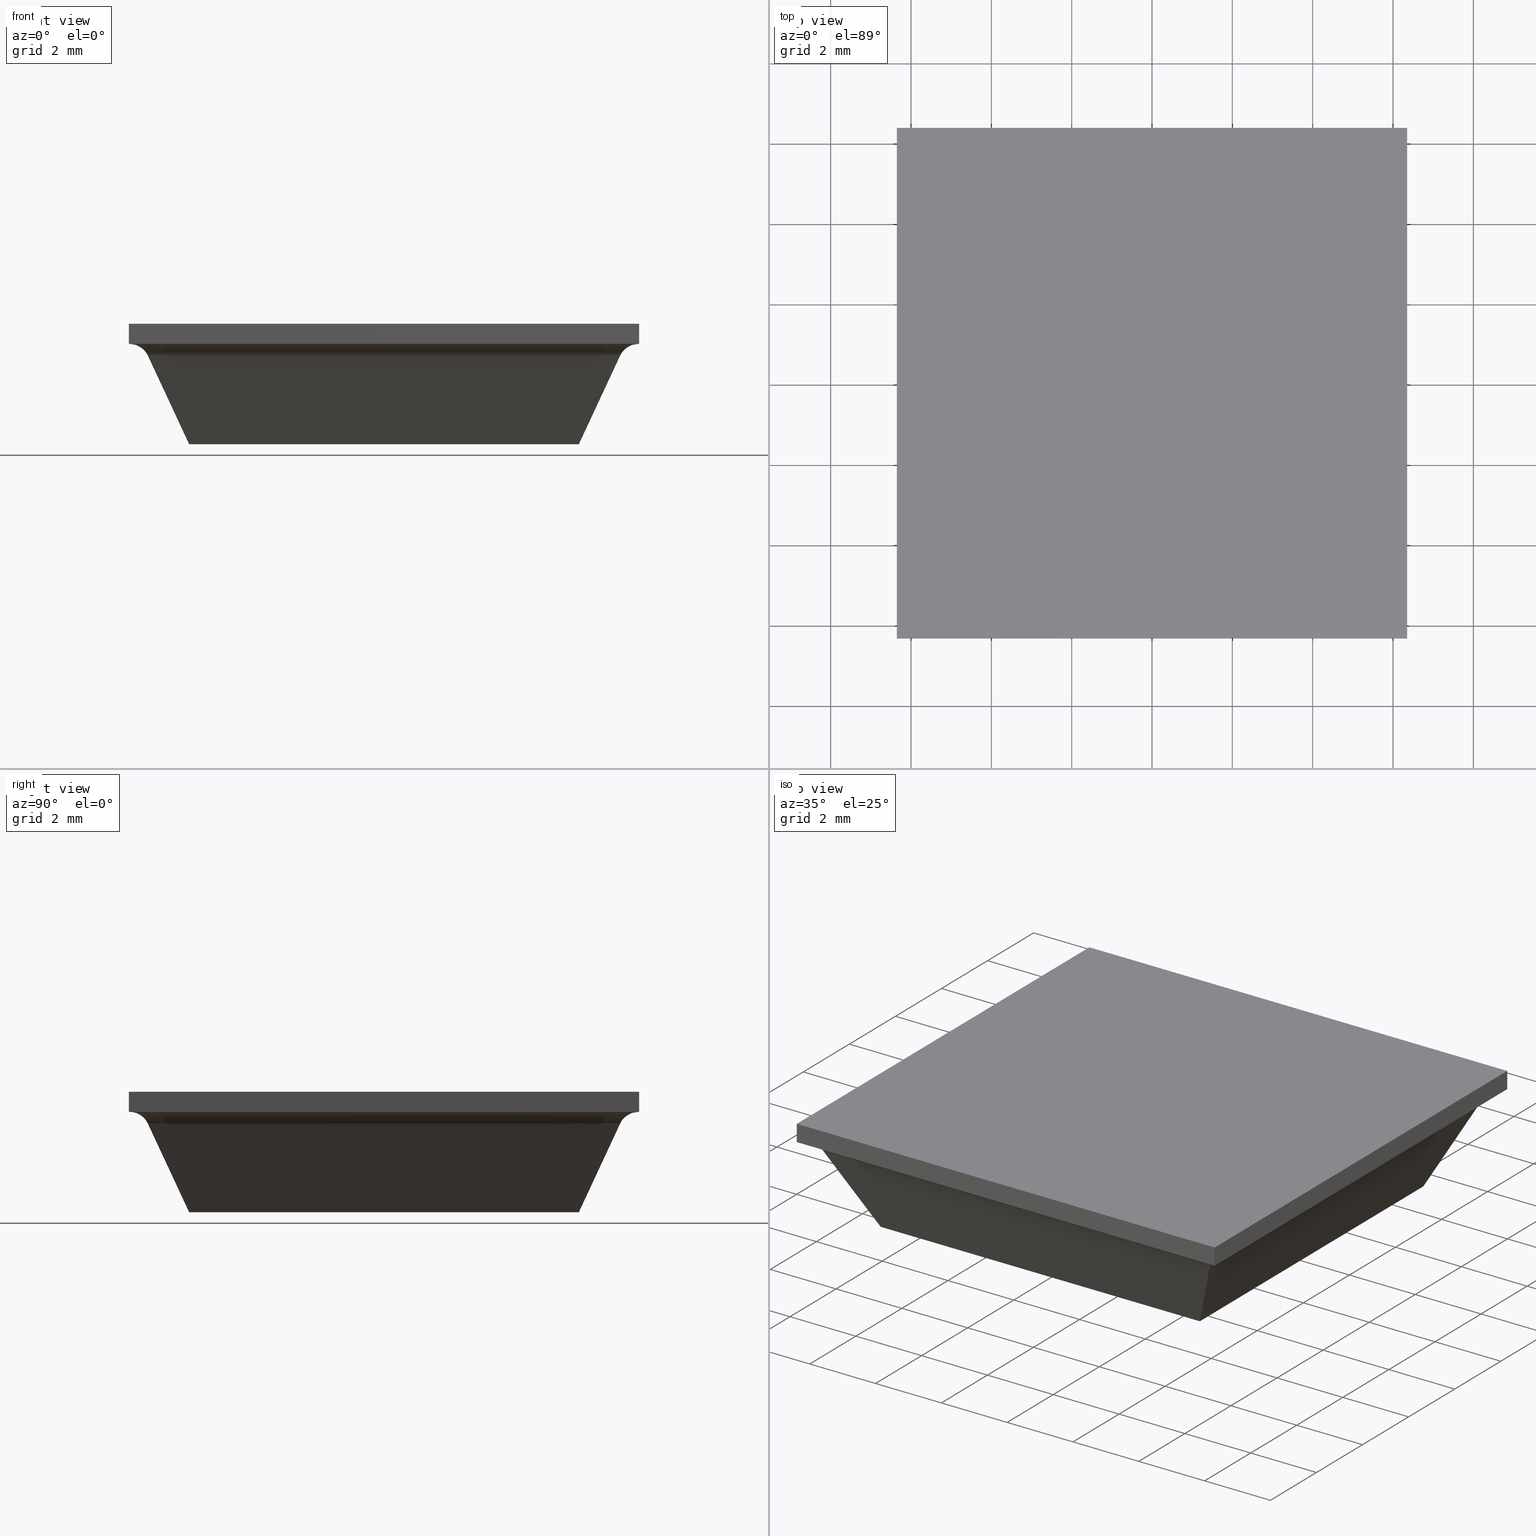
[diagram: canonical four-view strip — front | top / right | iso, engineering-drawing reading convention]
A machine part, canonical four-view strip (front | top / right | iso — engineering-drawing reading convention). The complete STEP part file that produces these views, byte-faithful:
ISO-10303-21;
HEADER;
/****************************************************************
 * Generated by software with PDE/Lib inside                    *
 * PDElib Version 4.4.1-0003, patched  Thursday August 19 11:58 *
 * International Technegroup Inc. (www.iti-oh.com)              *
 ****************************************************************/
FILE_DESCRIPTION((''),'2;1');
FILE_NAME('','2005-12-14T15:44:19',(''),(''),'','CADfix','');
FILE_SCHEMA(('AUTOMOTIVE_DESIGN'));
ENDSEC;
DATA;
#5=APPLICATION_CONTEXT('automotive design');
#6=APPLICATION_PROTOCOL_DEFINITION('Draft International Standard','automotive_design',1998,#5);
#7=PRODUCT_CONTEXT('None',#5,'mechanical');
#8=PRODUCT('rubber foot','','None',(#7));
#9=PRODUCT_RELATED_PRODUCT_CATEGORY('part','description',(#8));
#10=PRODUCT_DEFINITION_FORMATION('None','None',#8);
#11=PRODUCT_DEFINITION_CONTEXT('part definition',#5,'design');
#12=PRODUCT_DEFINITION('None','None',#10,#11);
#18=(NAMED_UNIT(*)PLANE_ANGLE_UNIT()SI_UNIT($,.RADIAN.));
#19=DIMENSIONAL_EXPONENTS(0.0,0.0,0.0,0.0,0.0,0.0,0.0);
#20=PLANE_ANGLE_MEASURE_WITH_UNIT(PLANE_ANGLE_MEASURE(0.017453292500000),#18);
#24=(CONVERSION_BASED_UNIT('DEGREE',#20)NAMED_UNIT(#19)PLANE_ANGLE_UNIT());
#28=(NAMED_UNIT(*)SI_UNIT($,.STERADIAN.)SOLID_ANGLE_UNIT());
#32=(LENGTH_UNIT()NAMED_UNIT(*)SI_UNIT(.MILLI.,.METRE.));
#34=UNCERTAINTY_MEASURE_WITH_UNIT(LENGTH_MEASURE(0.001000000000000),#32,'DISTANCE_ACCURACY_VALUE','');
#36=(GEOMETRIC_REPRESENTATION_CONTEXT(3)GLOBAL_UNCERTAINTY_ASSIGNED_CONTEXT((#34))GLOBAL_UNIT_ASSIGNED_CONTEXT((#24,#28,#32))REPRESENTATION_CONTEXT('None','None'));
#37=AXIS2_PLACEMENT_3D('',#38,#39,#40);
#38=CARTESIAN_POINT('',(0.0,0.0,0.0));
#39=DIRECTION('',(0.0,0.0,1.0));
#40=DIRECTION('',(1.0,0.0,0.0));
#41=ADVANCED_BREP_SHAPE_REPRESENTATION('',(#37,#467),#36);
#42=PRODUCT_DEFINITION_SHAPE('','',#12);
#43=SHAPE_DEFINITION_REPRESENTATION(#42,#41);
#44=CARTESIAN_POINT('',(-6.347392428698098,6.651019152271369,2.499828662487778));
#45=CARTESIAN_POINT('',(-6.347392428698098,-6.658937032214548,2.499828662487778));
#46=CARTESIAN_POINT('',(-6.000215764091201,6.651019152271368,2.508919803397826));
#47=CARTESIAN_POINT('',(-6.000215764091201,-6.658937032214548,2.508919803397826));
#48=CARTESIAN_POINT('',(-5.870493255542651,6.651019152271369,2.186760904612636));
#49=CARTESIAN_POINT('',(-5.870493255542651,-6.658937032214548,2.186760904612636));
#57=(BOUNDED_SURFACE()B_SPLINE_SURFACE(1,2,((#44,#46,#48),(#45,#47,#49)),.UNSPECIFIED.,.F.,.F.,.U.)B_SPLINE_SURFACE_WITH_KNOTS((2,2),(3,3),(0.0,13.309956184485920),(0.0,0.993420241738949),.UNSPECIFIED.)GEOMETRIC_REPRESENTATION_ITEM()RATIONAL_B_SPLINE_SURFACE(((1.0,0.820341980119575,0.997635787319055),(1.0,0.820341980119575,0.997635787319055)))REPRESENTATION_ITEM('')SURFACE());
#58=CARTESIAN_POINT('',(-5.881150035810770,-5.881150035810969,2.211309076796455));
#59=VERTEX_POINT('',#58);
#60=CARTESIAN_POINT('',(-6.334303954544160,-6.334303954544160,2.500000000000000));
#61=VERTEX_POINT('',#60);
#62=CARTESIAN_POINT('',(-5.881150035810770,-5.881150035810969,2.211309076796455));
#63=CARTESIAN_POINT('',(-6.015768782200882,-6.015768782200882,2.500000000000001));
#64=CARTESIAN_POINT('',(-6.334303954544160,-6.334303954544160,2.500000000000000));
#72=(BOUNDED_CURVE()B_SPLINE_CURVE(2,(#62,#63,#64),.UNSPECIFIED.,.F.,.U.)CURVE()GEOMETRIC_REPRESENTATION_ITEM()QUASI_UNIFORM_CURVE()RATIONAL_B_SPLINE_CURVE((1.0,0.843391413755473,1.0))REPRESENTATION_ITEM(''));
#73=EDGE_CURVE('',#59,#61,#72,.T.);
#74=ORIENTED_EDGE('',*,*,#73,.T.);
#75=CARTESIAN_POINT('',(-6.334303954544160,6.334303954544160,2.500000000000000));
#76=VERTEX_POINT('',#75);
#77=CARTESIAN_POINT('',(-6.334303954544160,6.334303954544160,2.500000000000000));
#78=CARTESIAN_POINT('',(-6.334303954544160,-6.334303954544160,2.500000000000000));
#79=QUASI_UNIFORM_CURVE('',1,(#77,#78),.UNSPECIFIED.,.F.,.U.);
#80=EDGE_CURVE('',#76,#61,#79,.T.);
#81=ORIENTED_EDGE('',*,*,#80,.F.);
#82=CARTESIAN_POINT('',(-5.881150035810859,5.881150035810720,2.211309076796675));
#83=VERTEX_POINT('',#82);
#84=CARTESIAN_POINT('',(-6.334303954544160,6.334303954544160,2.500000000000000));
#85=CARTESIAN_POINT('',(-6.015768782200919,6.015768782200919,2.500000000000001));
#86=CARTESIAN_POINT('',(-5.881150035810859,5.881150035810720,2.211309076796675));
#94=(BOUNDED_CURVE()B_SPLINE_CURVE(2,(#84,#85,#86),.UNSPECIFIED.,.F.,.U.)CURVE()GEOMETRIC_REPRESENTATION_ITEM()QUASI_UNIFORM_CURVE()RATIONAL_B_SPLINE_CURVE((1.0,0.843391413755501,1.0))REPRESENTATION_ITEM(''));
#95=EDGE_CURVE('',#76,#83,#94,.T.);
#96=ORIENTED_EDGE('',*,*,#95,.T.);
#97=CARTESIAN_POINT('',(-5.881150035810770,-5.881150035810969,2.211309076796455));
#98=CARTESIAN_POINT('',(-5.881150035810859,5.881150035810720,2.211309076796675));
#99=QUASI_UNIFORM_CURVE('',1,(#97,#98),.UNSPECIFIED.,.F.,.U.);
#100=EDGE_CURVE('',#59,#83,#99,.T.);
#101=ORIENTED_EDGE('',*,*,#100,.F.);
#102=EDGE_LOOP('',(#74,#81,#96,#101));
#103=FACE_OUTER_BOUND('',#102,.T.);
#104=ADVANCED_FACE('',(#103),#57,.F.);
#105=CARTESIAN_POINT('',(6.651019152271369,6.347392428698098,2.499828662487778));
#106=CARTESIAN_POINT('',(-6.658937032214548,6.347392428698098,2.499828662487778));
#107=CARTESIAN_POINT('',(6.651019152271368,6.000215764091201,2.508919803397826));
#108=CARTESIAN_POINT('',(-6.658937032214548,6.000215764091201,2.508919803397826));
#109=CARTESIAN_POINT('',(6.651019152271369,5.870493255542651,2.186760904612636));
#110=CARTESIAN_POINT('',(-6.658937032214548,5.870493255542651,2.186760904612636));
#118=(BOUNDED_SURFACE()B_SPLINE_SURFACE(1,2,((#105,#107,#109),(#106,#108,#110)),.UNSPECIFIED.,.F.,.F.,.U.)B_SPLINE_SURFACE_WITH_KNOTS((2,2),(3,3),(0.0,13.309956184485920),(0.0,0.993420241738949),.UNSPECIFIED.)GEOMETRIC_REPRESENTATION_ITEM()RATIONAL_B_SPLINE_SURFACE(((1.0,0.820341980119575,0.997635787319055),(1.0,0.820341980119575,0.997635787319055)))REPRESENTATION_ITEM('')SURFACE());
#119=CARTESIAN_POINT('',(6.334303954544160,6.334303954544160,2.500000000000000));
#120=VERTEX_POINT('',#119);
#121=CARTESIAN_POINT('',(5.881150035810720,5.881150035810859,2.211309076796675));
#122=VERTEX_POINT('',#121);
#123=CARTESIAN_POINT('',(6.334303954544160,6.334303954544160,2.500000000000000));
#124=CARTESIAN_POINT('',(6.015768782200919,6.015768782200919,2.500000000000001));
#125=CARTESIAN_POINT('',(5.881150035810720,5.881150035810859,2.211309076796675));
#133=(BOUNDED_CURVE()B_SPLINE_CURVE(2,(#123,#124,#125),.UNSPECIFIED.,.F.,.U.)CURVE()GEOMETRIC_REPRESENTATION_ITEM()QUASI_UNIFORM_CURVE()RATIONAL_B_SPLINE_CURVE((1.0,0.843391413755501,1.0))REPRESENTATION_ITEM(''));
#134=EDGE_CURVE('',#120,#122,#133,.T.);
#135=ORIENTED_EDGE('',*,*,#134,.T.);
#136=CARTESIAN_POINT('',(-5.881150035810859,5.881150035810720,2.211309076796675));
#137=CARTESIAN_POINT('',(5.881150035810720,5.881150035810859,2.211309076796675));
#138=QUASI_UNIFORM_CURVE('',1,(#136,#137),.UNSPECIFIED.,.F.,.U.);
#139=EDGE_CURVE('',#83,#122,#138,.T.);
#140=ORIENTED_EDGE('',*,*,#139,.F.);
#141=ORIENTED_EDGE('',*,*,#95,.F.);
#142=CARTESIAN_POINT('',(6.334303954544160,6.334303954544160,2.500000000000000));
#143=CARTESIAN_POINT('',(-6.334303954544160,6.334303954544160,2.500000000000000));
#144=QUASI_UNIFORM_CURVE('',1,(#142,#143),.UNSPECIFIED.,.F.,.U.);
#145=EDGE_CURVE('',#120,#76,#144,.T.);
#146=ORIENTED_EDGE('',*,*,#145,.F.);
#147=EDGE_LOOP('',(#135,#140,#141,#146));
#148=FACE_OUTER_BOUND('',#147,.T.);
#149=ADVANCED_FACE('',(#148),#118,.F.);
#150=CARTESIAN_POINT('',(-6.651019152271369,-6.347392428698098,2.499828662487778));
#151=CARTESIAN_POINT('',(6.658937032214548,-6.347392428698098,2.499828662487778));
#152=CARTESIAN_POINT('',(-6.651019152271368,-6.000215764091201,2.508919803397826));
#153=CARTESIAN_POINT('',(6.658937032214548,-6.000215764091201,2.508919803397826));
#154=CARTESIAN_POINT('',(-6.651019152271369,-5.870493255542651,2.186760904612636));
#155=CARTESIAN_POINT('',(6.658937032214548,-5.870493255542651,2.186760904612636));
#163=(BOUNDED_SURFACE()B_SPLINE_SURFACE(1,2,((#150,#152,#154),(#151,#153,#155)),.UNSPECIFIED.,.F.,.F.,.U.)B_SPLINE_SURFACE_WITH_KNOTS((2,2),(3,3),(0.0,13.309956184485920),(0.0,0.993420241738949),.UNSPECIFIED.)GEOMETRIC_REPRESENTATION_ITEM()RATIONAL_B_SPLINE_SURFACE(((1.0,0.820341980119575,0.997635787319055),(1.0,0.820341980119575,0.997635787319055)))REPRESENTATION_ITEM('')SURFACE());
#164=CARTESIAN_POINT('',(5.881150035810859,-5.881150035810720,2.211309076796675));
#165=VERTEX_POINT('',#164);
#166=CARTESIAN_POINT('',(6.334303954544160,-6.334303954544160,2.500000000000000));
#167=VERTEX_POINT('',#166);
#168=CARTESIAN_POINT('',(5.881150035810859,-5.881150035810720,2.211309076796675));
#169=CARTESIAN_POINT('',(6.015768782200919,-6.015768782200919,2.500000000000001));
#170=CARTESIAN_POINT('',(6.334303954544160,-6.334303954544160,2.500000000000000));
#178=(BOUNDED_CURVE()B_SPLINE_CURVE(2,(#168,#169,#170),.UNSPECIFIED.,.F.,.U.)CURVE()GEOMETRIC_REPRESENTATION_ITEM()QUASI_UNIFORM_CURVE()RATIONAL_B_SPLINE_CURVE((1.0,0.843391413755501,1.0))REPRESENTATION_ITEM(''));
#179=EDGE_CURVE('',#165,#167,#178,.T.);
#180=ORIENTED_EDGE('',*,*,#179,.T.);
#181=CARTESIAN_POINT('',(-6.334303954544160,-6.334303954544160,2.500000000000000));
#182=CARTESIAN_POINT('',(6.334303954544160,-6.334303954544160,2.500000000000000));
#183=QUASI_UNIFORM_CURVE('',1,(#181,#182),.UNSPECIFIED.,.F.,.U.);
#184=EDGE_CURVE('',#61,#167,#183,.T.);
#185=ORIENTED_EDGE('',*,*,#184,.F.);
#186=ORIENTED_EDGE('',*,*,#73,.F.);
#187=CARTESIAN_POINT('',(5.881150035810859,-5.881150035810720,2.211309076796675));
#188=CARTESIAN_POINT('',(-5.881150035810770,-5.881150035810969,2.211309076796455));
#189=QUASI_UNIFORM_CURVE('',1,(#187,#188),.UNSPECIFIED.,.F.,.U.);
#190=EDGE_CURVE('',#165,#59,#189,.T.);
#191=ORIENTED_EDGE('',*,*,#190,.F.);
#192=EDGE_LOOP('',(#180,#185,#186,#191));
#193=FACE_OUTER_BOUND('',#192,.T.);
#194=ADVANCED_FACE('',(#193),#163,.F.);
#195=CARTESIAN_POINT('',(6.347392428698098,-6.651019152271369,2.499828662487778));
#196=CARTESIAN_POINT('',(6.347392428698098,6.658937032214548,2.499828662487778));
#197=CARTESIAN_POINT('',(6.000215764091201,-6.651019152271368,2.508919803397826));
#198=CARTESIAN_POINT('',(6.000215764091201,6.658937032214548,2.508919803397826));
#199=CARTESIAN_POINT('',(5.870493255542651,-6.651019152271369,2.186760904612636));
#200=CARTESIAN_POINT('',(5.870493255542651,6.658937032214548,2.186760904612636));
#208=(BOUNDED_SURFACE()B_SPLINE_SURFACE(1,2,((#195,#197,#199),(#196,#198,#200)),.UNSPECIFIED.,.F.,.F.,.U.)B_SPLINE_SURFACE_WITH_KNOTS((2,2),(3,3),(0.0,13.309956184485920),(0.0,0.993420241738949),.UNSPECIFIED.)GEOMETRIC_REPRESENTATION_ITEM()RATIONAL_B_SPLINE_SURFACE(((1.0,0.820341980119575,0.997635787319055),(1.0,0.820341980119575,0.997635787319055)))REPRESENTATION_ITEM('')SURFACE());
#209=ORIENTED_EDGE('',*,*,#134,.F.);
#210=CARTESIAN_POINT('',(6.334303954544160,-6.334303954544160,2.500000000000000));
#211=CARTESIAN_POINT('',(6.334303954544160,6.334303954544160,2.500000000000000));
#212=QUASI_UNIFORM_CURVE('',1,(#210,#211),.UNSPECIFIED.,.F.,.U.);
#213=EDGE_CURVE('',#167,#120,#212,.T.);
#214=ORIENTED_EDGE('',*,*,#213,.F.);
#215=ORIENTED_EDGE('',*,*,#179,.F.);
#216=CARTESIAN_POINT('',(5.881150035810720,5.881150035810859,2.211309076796675));
#217=CARTESIAN_POINT('',(5.881150035810859,-5.881150035810720,2.211309076796675));
#218=QUASI_UNIFORM_CURVE('',1,(#216,#217),.UNSPECIFIED.,.F.,.U.);
#219=EDGE_CURVE('',#122,#165,#218,.T.);
#220=ORIENTED_EDGE('',*,*,#219,.F.);
#221=EDGE_LOOP('',(#209,#214,#215,#220));
#222=FACE_OUTER_BOUND('',#221,.T.);
#223=ADVANCED_FACE('',(#222),#208,.F.);
#224=CARTESIAN_POINT('',(-6.468677122422764,-4.798494034666428,-0.110454933516769));
#225=CARTESIAN_POINT('',(-6.468677122422764,-5.932656084117212,2.321764188249182));
#226=CARTESIAN_POINT('',(6.468677227586010,-4.798494034666428,-0.110454933516769));
#227=CARTESIAN_POINT('',(6.468677227586010,-5.932656084117212,2.321764188249182));
#228=B_SPLINE_SURFACE_WITH_KNOTS('',1,1,((#224,#226),(#225,#227)),.UNSPECIFIED.,.F.,.F.,.U.,(2,2),(2,2),(0.0,2.683656723707102),(0.0,12.937354350008780),.UNSPECIFIED.);
#229=CARTESIAN_POINT('',(4.850000000000001,-4.850000000000001,0.0));
#230=VERTEX_POINT('',#229);
#231=CARTESIAN_POINT('',(5.881150035810859,-5.881150035810720,2.211309076796675));
#232=CARTESIAN_POINT('',(4.850000000000001,-4.850000000000001,0.0));
#233=QUASI_UNIFORM_CURVE('',1,(#231,#232),.UNSPECIFIED.,.F.,.U.);
#234=EDGE_CURVE('',#165,#230,#233,.T.);
#235=ORIENTED_EDGE('',*,*,#234,.F.);
#236=ORIENTED_EDGE('',*,*,#190,.T.);
#237=CARTESIAN_POINT('',(-4.850000000000001,-4.850000000000001,0.0));
#238=VERTEX_POINT('',#237);
#239=CARTESIAN_POINT('',(-4.850000000000001,-4.850000000000001,0.0));
#240=CARTESIAN_POINT('',(-5.881150035810770,-5.881150035810969,2.211309076796455));
#241=QUASI_UNIFORM_CURVE('',1,(#239,#240),.UNSPECIFIED.,.F.,.U.);
#242=EDGE_CURVE('',#238,#59,#241,.T.);
#243=ORIENTED_EDGE('',*,*,#242,.F.);
#244=CARTESIAN_POINT('',(4.850000000000001,-4.850000000000001,0.0));
#245=CARTESIAN_POINT('',(-4.850000000000001,-4.850000000000001,0.0));
#246=QUASI_UNIFORM_CURVE('',1,(#244,#245),.UNSPECIFIED.,.F.,.U.);
#247=EDGE_CURVE('',#230,#238,#246,.T.);
#248=ORIENTED_EDGE('',*,*,#247,.F.);
#249=EDGE_LOOP('',(#235,#236,#243,#248));
#250=FACE_OUTER_BOUND('',#249,.T.);
#251=ADVANCED_FACE('',(#250),#228,.F.);
#252=CARTESIAN_POINT('',(4.798494034666426,-6.468677122422712,-0.110454933516772));
#253=CARTESIAN_POINT('',(5.932656084117236,-6.468677122422712,2.321764188249238));
#254=CARTESIAN_POINT('',(4.798494034666426,6.468677227586009,-0.110454933516772));
#255=CARTESIAN_POINT('',(5.932656084117236,6.468677227586009,2.321764188249238));
#256=B_SPLINE_SURFACE_WITH_KNOTS('',1,1,((#252,#254),(#253,#255)),.UNSPECIFIED.,.F.,.F.,.U.,(2,2),(2,2),(0.0,2.683656723707167),(0.0,12.937354350008720),.UNSPECIFIED.);
#257=CARTESIAN_POINT('',(4.850000000000001,4.850000000000001,0.0));
#258=VERTEX_POINT('',#257);
#259=CARTESIAN_POINT('',(5.881150035810720,5.881150035810859,2.211309076796675));
#260=CARTESIAN_POINT('',(4.850000000000001,4.850000000000001,0.0));
#261=QUASI_UNIFORM_CURVE('',1,(#259,#260),.UNSPECIFIED.,.F.,.U.);
#262=EDGE_CURVE('',#122,#258,#261,.T.);
#263=ORIENTED_EDGE('',*,*,#262,.F.);
#264=ORIENTED_EDGE('',*,*,#219,.T.);
#265=ORIENTED_EDGE('',*,*,#234,.T.);
#266=CARTESIAN_POINT('',(4.850000000000001,4.850000000000001,0.0));
#267=CARTESIAN_POINT('',(4.850000000000001,-4.850000000000001,0.0));
#268=QUASI_UNIFORM_CURVE('',1,(#266,#267),.UNSPECIFIED.,.F.,.U.);
#269=EDGE_CURVE('',#258,#230,#268,.T.);
#270=ORIENTED_EDGE('',*,*,#269,.F.);
#271=EDGE_LOOP('',(#263,#264,#265,#270));
#272=FACE_OUTER_BOUND('',#271,.T.);
#273=ADVANCED_FACE('',(#272),#256,.F.);
#274=CARTESIAN_POINT('',(-6.468677122422852,5.932656065218338,2.321764147720407));
#275=CARTESIAN_POINT('',(-6.468677122422852,4.798494025907725,-0.110454952299872));
#276=CARTESIAN_POINT('',(6.468677227585870,5.932656065218338,2.321764147720407));
#277=CARTESIAN_POINT('',(6.468677227585870,4.798494025907725,-0.110454952299872));
#278=B_SPLINE_SURFACE_WITH_KNOTS('',1,1,((#274,#276),(#275,#277)),.UNSPECIFIED.,.F.,.F.,.U.,(2,2),(2,2),(0.0,2.683656699713410),(0.0,12.937354350008720),.UNSPECIFIED.);
#279=CARTESIAN_POINT('',(-4.850000000000001,4.850000000000001,0.0));
#280=VERTEX_POINT('',#279);
#281=CARTESIAN_POINT('',(-5.881150035810859,5.881150035810720,2.211309076796675));
#282=CARTESIAN_POINT('',(-4.850000000000001,4.850000000000001,0.0));
#283=QUASI_UNIFORM_CURVE('',1,(#281,#282),.UNSPECIFIED.,.F.,.U.);
#284=EDGE_CURVE('',#83,#280,#283,.T.);
#285=ORIENTED_EDGE('',*,*,#284,.F.);
#286=ORIENTED_EDGE('',*,*,#139,.T.);
#287=ORIENTED_EDGE('',*,*,#262,.T.);
#288=CARTESIAN_POINT('',(-4.850000000000001,4.850000000000001,0.0));
#289=CARTESIAN_POINT('',(4.850000000000001,4.850000000000001,0.0));
#290=QUASI_UNIFORM_CURVE('',1,(#288,#289),.UNSPECIFIED.,.F.,.U.);
#291=EDGE_CURVE('',#280,#258,#290,.T.);
#292=ORIENTED_EDGE('',*,*,#291,.F.);
#293=EDGE_LOOP('',(#285,#286,#287,#292));
#294=FACE_OUTER_BOUND('',#293,.T.);
#295=ADVANCED_FACE('',(#294),#278,.F.);
#296=CARTESIAN_POINT('',(-5.932656065218338,-6.468677122422966,2.321764147720407));
#297=CARTESIAN_POINT('',(-4.798494025907725,-6.468677122422966,-0.110454952299872));
#298=CARTESIAN_POINT('',(-5.932656065218338,6.468677227585874,2.321764147720407));
#299=CARTESIAN_POINT('',(-4.798494025907725,6.468677227585874,-0.110454952299872));
#300=B_SPLINE_SURFACE_WITH_KNOTS('',1,1,((#296,#298),(#297,#299)),.UNSPECIFIED.,.F.,.F.,.U.,(2,2),(2,2),(0.0,2.683656699713410),(0.0,12.937354350008841),.UNSPECIFIED.);
#301=ORIENTED_EDGE('',*,*,#242,.T.);
#302=ORIENTED_EDGE('',*,*,#100,.T.);
#303=ORIENTED_EDGE('',*,*,#284,.T.);
#304=CARTESIAN_POINT('',(-4.850000000000001,-4.850000000000001,0.0));
#305=CARTESIAN_POINT('',(-4.850000000000001,4.850000000000001,0.0));
#306=QUASI_UNIFORM_CURVE('',1,(#304,#305),.UNSPECIFIED.,.F.,.U.);
#307=EDGE_CURVE('',#238,#280,#306,.T.);
#308=ORIENTED_EDGE('',*,*,#307,.F.);
#309=EDGE_LOOP('',(#301,#302,#303,#308));
#310=FACE_OUTER_BOUND('',#309,.T.);
#311=ADVANCED_FACE('',(#310),#300,.F.);
#312=CARTESIAN_POINT('',(-6.984364856166421,-6.984364856166422,2.500000000000000));
#313=CARTESIAN_POINT('',(6.984365310353813,-6.984364856166422,2.500000000000000));
#314=CARTESIAN_POINT('',(-6.984364856166421,6.984365310353814,2.500000000000000));
#315=CARTESIAN_POINT('',(6.984365310353814,6.984365310353814,2.500000000000000));
#316=B_SPLINE_SURFACE_WITH_KNOTS('',1,1,((#312,#314),(#313,#315)),.UNSPECIFIED.,.F.,.F.,.U.,(2,2),(2,2),(0.0,13.968730166520240),(0.0,13.968730166520240),.UNSPECIFIED.);
#317=CARTESIAN_POINT('',(6.350000000000000,6.350000000000000,2.500000000000000));
#318=VERTEX_POINT('',#317);
#319=CARTESIAN_POINT('',(6.350000000000000,-6.350000000000000,2.500000000000000));
#320=VERTEX_POINT('',#319);
#321=CARTESIAN_POINT('',(6.350000000000000,6.350000000000000,2.500000000000000));
#322=CARTESIAN_POINT('',(6.350000000000000,-6.350000000000000,2.500000000000000));
#323=QUASI_UNIFORM_CURVE('',1,(#321,#322),.UNSPECIFIED.,.F.,.U.);
#324=EDGE_CURVE('',#318,#320,#323,.T.);
#325=ORIENTED_EDGE('',*,*,#324,.T.);
#326=CARTESIAN_POINT('',(-6.350000000000000,-6.350000000000000,2.500000000000000));
#327=VERTEX_POINT('',#326);
#328=CARTESIAN_POINT('',(-6.350000000000000,-6.350000000000000,2.500000000000000));
#329=CARTESIAN_POINT('',(6.350000000000000,-6.350000000000000,2.500000000000000));
#330=QUASI_UNIFORM_CURVE('',1,(#328,#329),.UNSPECIFIED.,.F.,.U.);
#331=EDGE_CURVE('',#327,#320,#330,.T.);
#332=ORIENTED_EDGE('',*,*,#331,.F.);
#333=CARTESIAN_POINT('',(-6.350000000000000,6.350000000000000,2.500000000000000));
#334=VERTEX_POINT('',#333);
#335=CARTESIAN_POINT('',(-6.350000000000000,-6.350000000000000,2.500000000000000));
#336=CARTESIAN_POINT('',(-6.350000000000000,6.350000000000000,2.500000000000000));
#337=QUASI_UNIFORM_CURVE('',1,(#335,#336),.UNSPECIFIED.,.F.,.U.);
#338=EDGE_CURVE('',#327,#334,#337,.T.);
#339=ORIENTED_EDGE('',*,*,#338,.T.);
#340=CARTESIAN_POINT('',(-6.350000000000000,6.350000000000000,2.500000000000000));
#341=CARTESIAN_POINT('',(6.350000000000000,6.350000000000000,2.500000000000000));
#342=QUASI_UNIFORM_CURVE('',1,(#340,#341),.UNSPECIFIED.,.F.,.U.);
#343=EDGE_CURVE('',#334,#318,#342,.T.);
#344=ORIENTED_EDGE('',*,*,#343,.T.);
#345=EDGE_LOOP('',(#325,#332,#339,#344));
#346=FACE_OUTER_BOUND('',#345,.T.);
#347=ORIENTED_EDGE('',*,*,#145,.T.);
#348=ORIENTED_EDGE('',*,*,#80,.T.);
#349=ORIENTED_EDGE('',*,*,#184,.T.);
#350=ORIENTED_EDGE('',*,*,#213,.T.);
#351=EDGE_LOOP('',(#347,#348,#349,#350));
#352=FACE_BOUND('',#351,.T.);
#353=ADVANCED_FACE('',(#346,#352),#316,.F.);
#354=CARTESIAN_POINT('',(-5.334514890142859,-5.334514890142859,0.0));
#355=CARTESIAN_POINT('',(5.334515237041892,-5.334514890142859,0.0));
#356=CARTESIAN_POINT('',(-5.334514890142858,5.334515237041892,0.0));
#357=CARTESIAN_POINT('',(5.334515237041892,5.334515237041892,0.0));
#358=B_SPLINE_SURFACE_WITH_KNOTS('',1,1,((#354,#356),(#355,#357)),.UNSPECIFIED.,.F.,.F.,.U.,(2,2),(2,2),(0.0,10.669030127184749),(0.0,10.669030127184749),.UNSPECIFIED.);
#359=ORIENTED_EDGE('',*,*,#247,.T.);
#360=ORIENTED_EDGE('',*,*,#307,.T.);
#361=ORIENTED_EDGE('',*,*,#291,.T.);
#362=ORIENTED_EDGE('',*,*,#269,.T.);
#363=EDGE_LOOP('',(#359,#360,#361,#362));
#364=FACE_OUTER_BOUND('',#363,.T.);
#365=ADVANCED_FACE('',(#364),#358,.F.);
#366=CARTESIAN_POINT('',(-6.984364856166421,-6.984364856166422,3.0));
#367=CARTESIAN_POINT('',(6.984365310353813,-6.984364856166422,3.0));
#368=CARTESIAN_POINT('',(-6.984364856166421,6.984365310353814,3.0));
#369=CARTESIAN_POINT('',(6.984365310353814,6.984365310353814,3.0));
#370=B_SPLINE_SURFACE_WITH_KNOTS('',1,1,((#366,#368),(#367,#369)),.UNSPECIFIED.,.F.,.F.,.U.,(2,2),(2,2),(0.0,13.968730166520240),(0.0,13.968730166520240),.UNSPECIFIED.);
#371=CARTESIAN_POINT('',(6.350000000000000,6.350000000000000,3.0));
#372=VERTEX_POINT('',#371);
#373=CARTESIAN_POINT('',(6.350000000000000,-6.350000000000000,3.0));
#374=VERTEX_POINT('',#373);
#375=CARTESIAN_POINT('',(6.350000000000000,6.350000000000000,3.0));
#376=CARTESIAN_POINT('',(6.350000000000000,-6.350000000000000,3.0));
#377=QUASI_UNIFORM_CURVE('',1,(#375,#376),.UNSPECIFIED.,.F.,.U.);
#378=EDGE_CURVE('',#372,#374,#377,.T.);
#379=ORIENTED_EDGE('',*,*,#378,.F.);
#380=CARTESIAN_POINT('',(-6.350000000000000,6.350000000000000,3.0));
#381=VERTEX_POINT('',#380);
#382=CARTESIAN_POINT('',(-6.350000000000000,6.350000000000000,3.0));
#383=CARTESIAN_POINT('',(6.350000000000000,6.350000000000000,3.0));
#384=QUASI_UNIFORM_CURVE('',1,(#382,#383),.UNSPECIFIED.,.F.,.U.);
#385=EDGE_CURVE('',#381,#372,#384,.T.);
#386=ORIENTED_EDGE('',*,*,#385,.F.);
#387=CARTESIAN_POINT('',(-6.350000000000000,-6.350000000000000,3.0));
#388=VERTEX_POINT('',#387);
#389=CARTESIAN_POINT('',(-6.350000000000000,-6.350000000000000,3.0));
#390=CARTESIAN_POINT('',(-6.350000000000000,6.350000000000000,3.0));
#391=QUASI_UNIFORM_CURVE('',1,(#389,#390),.UNSPECIFIED.,.F.,.U.);
#392=EDGE_CURVE('',#388,#381,#391,.T.);
#393=ORIENTED_EDGE('',*,*,#392,.F.);
#394=CARTESIAN_POINT('',(6.350000000000000,-6.350000000000000,3.0));
#395=CARTESIAN_POINT('',(-6.350000000000000,-6.350000000000000,3.0));
#396=QUASI_UNIFORM_CURVE('',1,(#394,#395),.UNSPECIFIED.,.F.,.U.);
#397=EDGE_CURVE('',#374,#388,#396,.T.);
#398=ORIENTED_EDGE('',*,*,#397,.F.);
#399=EDGE_LOOP('',(#379,#386,#393,#398));
#400=FACE_OUTER_BOUND('',#399,.T.);
#401=ADVANCED_FACE('',(#400),#370,.T.);
#402=CARTESIAN_POINT('',(-6.984364856166422,6.350000000000000,2.475025000969097));
#403=CARTESIAN_POINT('',(-6.984364856166422,6.350000000000000,3.024975012441949));
#404=CARTESIAN_POINT('',(6.984365310353814,6.350000000000000,2.475025000969097));
#405=CARTESIAN_POINT('',(6.984365310353814,6.350000000000000,3.024975012441949));
#406=B_SPLINE_SURFACE_WITH_KNOTS('',1,1,((#402,#404),(#403,#405)),.UNSPECIFIED.,.F.,.F.,.U.,(2,2),(2,2),(0.041708334948495,0.958291687403247),(0.0,13.968730166520240),.UNSPECIFIED.);
#407=CARTESIAN_POINT('',(6.350000000000000,6.350000000000000,3.0));
#408=CARTESIAN_POINT('',(6.350000000000000,6.350000000000000,2.500000000000000));
#409=QUASI_UNIFORM_CURVE('',1,(#407,#408),.UNSPECIFIED.,.F.,.U.);
#410=EDGE_CURVE('',#372,#318,#409,.T.);
#411=ORIENTED_EDGE('',*,*,#410,.T.);
#412=ORIENTED_EDGE('',*,*,#343,.F.);
#413=CARTESIAN_POINT('',(-6.350000000000000,6.350000000000000,3.0));
#414=CARTESIAN_POINT('',(-6.350000000000000,6.350000000000000,2.500000000000000));
#415=QUASI_UNIFORM_CURVE('',1,(#413,#414),.UNSPECIFIED.,.F.,.U.);
#416=EDGE_CURVE('',#381,#334,#415,.T.);
#417=ORIENTED_EDGE('',*,*,#416,.F.);
#418=ORIENTED_EDGE('',*,*,#385,.T.);
#419=EDGE_LOOP('',(#411,#412,#417,#418));
#420=FACE_OUTER_BOUND('',#419,.T.);
#421=ADVANCED_FACE('',(#420),#406,.T.);
#422=CARTESIAN_POINT('',(-6.350000000000000,-6.984364856166422,2.475025000969097));
#423=CARTESIAN_POINT('',(-6.350000000000000,-6.984364856166422,3.024975012441949));
#424=CARTESIAN_POINT('',(-6.350000000000000,6.984365310353814,2.475025000969097));
#425=CARTESIAN_POINT('',(-6.350000000000000,6.984365310353814,3.024975012441949));
#426=B_SPLINE_SURFACE_WITH_KNOTS('',1,1,((#422,#424),(#423,#425)),.UNSPECIFIED.,.F.,.F.,.U.,(2,2),(2,2),(0.041708334948495,0.958291687403247),(0.0,13.968730166520240),.UNSPECIFIED.);
#427=ORIENTED_EDGE('',*,*,#338,.F.);
#428=CARTESIAN_POINT('',(-6.350000000000000,-6.350000000000000,3.0));
#429=CARTESIAN_POINT('',(-6.350000000000000,-6.350000000000000,2.500000000000000));
#430=QUASI_UNIFORM_CURVE('',1,(#428,#429),.UNSPECIFIED.,.F.,.U.);
#431=EDGE_CURVE('',#388,#327,#430,.T.);
#432=ORIENTED_EDGE('',*,*,#431,.F.);
#433=ORIENTED_EDGE('',*,*,#392,.T.);
#434=ORIENTED_EDGE('',*,*,#416,.T.);
#435=EDGE_LOOP('',(#427,#432,#433,#434));
#436=FACE_OUTER_BOUND('',#435,.T.);
#437=ADVANCED_FACE('',(#436),#426,.T.);
#438=CARTESIAN_POINT('',(-6.984364856166422,-6.350000000000000,3.024974999030904));
#439=CARTESIAN_POINT('',(-6.984364856166422,-6.350000000000000,2.475024987558052));
#440=CARTESIAN_POINT('',(6.984365310353814,-6.350000000000000,3.024974999030904));
#441=CARTESIAN_POINT('',(6.984365310353814,-6.350000000000000,2.475024987558052));
#442=B_SPLINE_SURFACE_WITH_KNOTS('',1,1,((#438,#440),(#439,#441)),.UNSPECIFIED.,.F.,.F.,.U.,(2,2),(2,2),(0.041708334948495,0.958291687403247),(0.0,13.968730166520240),.UNSPECIFIED.);
#443=ORIENTED_EDGE('',*,*,#331,.T.);
#444=CARTESIAN_POINT('',(6.350000000000000,-6.350000000000000,3.0));
#445=CARTESIAN_POINT('',(6.350000000000000,-6.350000000000000,2.500000000000000));
#446=QUASI_UNIFORM_CURVE('',1,(#444,#445),.UNSPECIFIED.,.F.,.U.);
#447=EDGE_CURVE('',#374,#320,#446,.T.);
#448=ORIENTED_EDGE('',*,*,#447,.F.);
#449=ORIENTED_EDGE('',*,*,#397,.T.);
#450=ORIENTED_EDGE('',*,*,#431,.T.);
#451=EDGE_LOOP('',(#443,#448,#449,#450));
#452=FACE_OUTER_BOUND('',#451,.T.);
#453=ADVANCED_FACE('',(#452),#442,.T.);
#454=CARTESIAN_POINT('',(6.350000000000000,-6.984364856166422,3.024974999030904));
#455=CARTESIAN_POINT('',(6.350000000000000,-6.984364856166422,2.475024987558052));
#456=CARTESIAN_POINT('',(6.350000000000000,6.984365310353814,3.024974999030904));
#457=CARTESIAN_POINT('',(6.350000000000000,6.984365310353814,2.475024987558052));
#458=B_SPLINE_SURFACE_WITH_KNOTS('',1,1,((#454,#456),(#455,#457)),.UNSPECIFIED.,.F.,.F.,.U.,(2,2),(2,2),(0.041708334948495,0.958291687403247),(0.0,13.968730166520240),.UNSPECIFIED.);
#459=ORIENTED_EDGE('',*,*,#447,.T.);
#460=ORIENTED_EDGE('',*,*,#324,.F.);
#461=ORIENTED_EDGE('',*,*,#410,.F.);
#462=ORIENTED_EDGE('',*,*,#378,.T.);
#463=EDGE_LOOP('',(#459,#460,#461,#462));
#464=FACE_OUTER_BOUND('',#463,.T.);
#465=ADVANCED_FACE('',(#464),#458,.T.);
#466=CLOSED_SHELL('',(#104,#149,#194,#223,#251,#273,#295,#311,#353,#365,#401,#421,#437,#453,#465));
#467=MANIFOLD_SOLID_BREP('rubber foot',#466);
#473=(NAMED_UNIT(*)PLANE_ANGLE_UNIT()SI_UNIT($,.RADIAN.));
#474=DIMENSIONAL_EXPONENTS(0.0,0.0,0.0,0.0,0.0,0.0,0.0);
#475=PLANE_ANGLE_MEASURE_WITH_UNIT(PLANE_ANGLE_MEASURE(0.017453292500000),#473);
#479=(CONVERSION_BASED_UNIT('DEGREE',#475)NAMED_UNIT(#474)PLANE_ANGLE_UNIT());
#483=(NAMED_UNIT(*)SI_UNIT($,.STERADIAN.)SOLID_ANGLE_UNIT());
#487=(LENGTH_UNIT()NAMED_UNIT(*)SI_UNIT(.MILLI.,.METRE.));
#489=UNCERTAINTY_MEASURE_WITH_UNIT(LENGTH_MEASURE(0.001000000000000),#487,'DISTANCE_ACCURACY_VALUE','');
#491=(GEOMETRIC_REPRESENTATION_CONTEXT(3)GLOBAL_UNCERTAINTY_ASSIGNED_CONTEXT((#489))GLOBAL_UNIT_ASSIGNED_CONTEXT((#479,#483,#487))REPRESENTATION_CONTEXT('','3D'));
ENDSEC;
END-ISO-10303-21;
